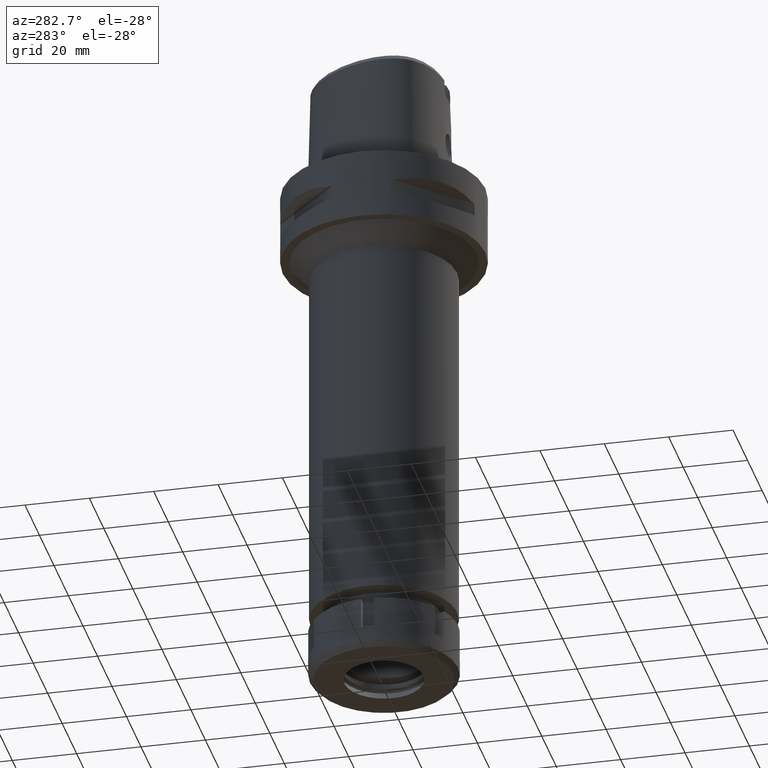
[diagram: clean part render]
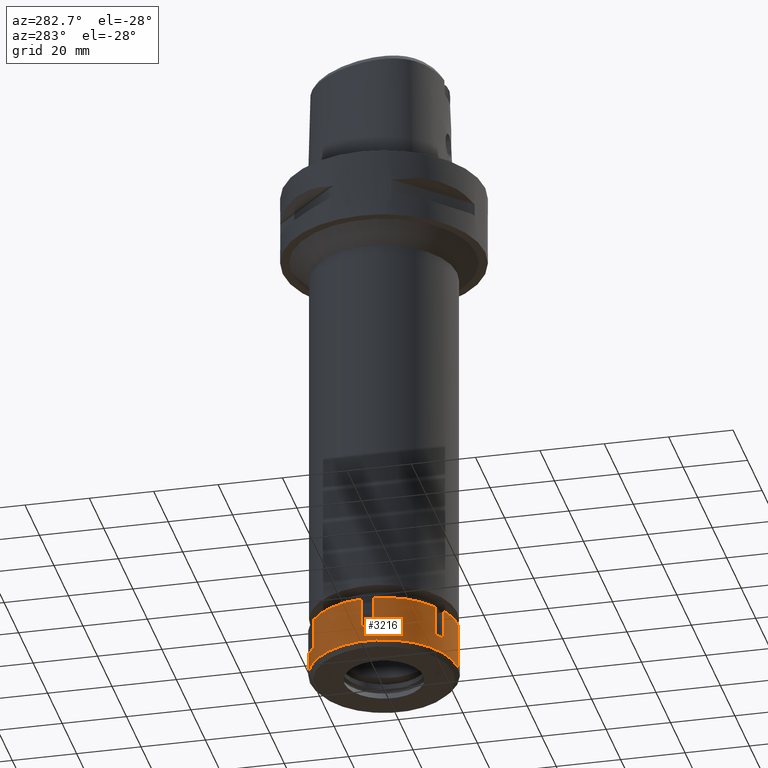
[diagram: same view with one face highlighted and labeled with its STEP entity id]
A machine part, auxiliary view. The second image highlights one B-rep face of the part: STEP entity #3216.
In plain terms, the highlighted cylindrical surface (partial cylindrical patch) has radius 23 mm, axis along (0, 0, -1).
Its self-contained STEP definition (entity closure, byte-faithful):
#60 = AXIS2_PLACEMENT_3D ( 'NONE', #3627, #4891, #4427 ) ;
#90 = ORIENTED_EDGE ( 'NONE', *, *, #2970, .F. ) ;
#103 = CARTESIAN_POINT ( 'NONE',  ( -22.91287847478000117, 2.000000000000000000, -9.500000000000000000 ) ) ;
#151 = AXIS2_PLACEMENT_3D ( 'NONE', #2406, #3734, #3710 ) ;
#188 = VERTEX_POINT ( 'NONE', #5437 ) ;
#269 = EDGE_CURVE ( 'NONE', #365, #4695, #5081, .T. ) ;
#270 = DIRECTION ( 'NONE',  ( 0.0000000000000000000, 0.0000000000000000000, -1.000000000000000000 ) ) ;
#275 = LINE ( 'NONE', #678, #304 ) ;
#304 = VECTOR ( 'NONE', #4932, 1000.000000000000000 ) ;
#309 = CYLINDRICAL_SURFACE ( 'NONE', #1063, 23.00000000000000000 ) ;
#365 = VERTEX_POINT ( 'NONE', #5349 ) ;
#494 = CIRCLE ( 'NONE', #3654, 23.00000000000000355 ) ;
#495 = CARTESIAN_POINT ( 'NONE',  ( 0.0000000000000000000, 23.00000000000000000, -14.50000000000000000 ) ) ;
#507 = VERTEX_POINT ( 'NONE', #1764 ) ;
#557 = DIRECTION ( 'NONE',  ( -0.9962121075990957308, 0.08695652173912968297, 0.0000000000000000000 ) ) ;
#678 = CARTESIAN_POINT ( 'NONE',  ( 0.0000000000000000000, 23.00000000000000000, 0.0000000000000000000 ) ) ;
#695 = ORIENTED_EDGE ( 'NONE', *, *, #2197, .T. ) ;
#708 = ORIENTED_EDGE ( 'NONE', *, *, #2863, .T. ) ;
#769 = EDGE_CURVE ( 'NONE', #5166, #5439, #3744, .T. ) ;
#909 = LINE ( 'NONE', #2624, #4297 ) ;
#939 = DIRECTION ( 'NONE',  ( 0.0000000000000000000, 0.0000000000000000000, -1.000000000000000000 ) ) ;
#941 = DIRECTION ( 'NONE',  ( 0.0000000000000000000, 0.0000000000000000000, -1.000000000000000000 ) ) ;
#989 = DIRECTION ( 'NONE',  ( 0.0000000000000000000, 0.0000000000000000000, 1.000000000000000000 ) ) ;
#1054 = DIRECTION ( 'NONE',  ( -0.5734126106503841802, -0.8192667318688773292, 0.0000000000000000000 ) ) ;
#1063 = AXIS2_PLACEMENT_3D ( 'NONE', #1926, #5388, #3626 ) ;
#1083 = CARTESIAN_POINT ( 'NONE',  ( 0.0000000000000000000, 0.0000000000000000000, 0.0000000000000000000 ) ) ;
#1089 = EDGE_CURVE ( 'NONE', #3073, #188, #494, .T. ) ;
#1117 = CARTESIAN_POINT ( 'NONE',  ( -22.91287847478000117, -2.000000000000000000, -9.500000000000000000 ) ) ;
#1136 = AXIS2_PLACEMENT_3D ( 'NONE', #1445, #939, #3174 ) ;
#1151 = CARTESIAN_POINT ( 'NONE',  ( -13.18849004495999999, -18.84313483298000236, -9.500000000000000000 ) ) ;
#1152 = ORIENTED_EDGE ( 'NONE', *, *, #3105, .T. ) ;
#1247 = VERTEX_POINT ( 'NONE', #4310 ) ;
#1297 = VERTEX_POINT ( 'NONE', #103 ) ;
#1414 = CARTESIAN_POINT ( 'NONE',  ( -9.724388429823001445, -20.84313483297999881, 0.0000000000000000000 ) ) ;
#1445 = CARTESIAN_POINT ( 'NONE',  ( 0.0000000000000000000, 0.0000000000000000000, -9.500000000000000000 ) ) ;
#1475 = LINE ( 'NONE', #4512, #4378 ) ;
#1520 = ORIENTED_EDGE ( 'NONE', *, *, #4707, .T. ) ;
#1522 = VERTEX_POINT ( 'NONE', #495 ) ;
#1536 = LINE ( 'NONE', #4977, #4203 ) ;
#1608 = AXIS2_PLACEMENT_3D ( 'NONE', #3005, #5163, #2705 ) ;
#1646 = DIRECTION ( 'NONE',  ( 0.0000000000000000000, 0.0000000000000000000, -1.000000000000000000 ) ) ;
#1659 = LINE ( 'NONE', #3400, #2108 ) ;
#1723 = CARTESIAN_POINT ( 'NONE',  ( -9.724388429820001178, 20.84313483297999881, -9.500000000000000000 ) ) ;
#1763 = ORIENTED_EDGE ( 'NONE', *, *, #5134, .F. ) ;
#1764 = CARTESIAN_POINT ( 'NONE',  ( -22.91287847478000117, -2.000000000000000000, 0.0000000000000000000 ) ) ;
#1895 = ORIENTED_EDGE ( 'NONE', *, *, #5022, .F. ) ;
#1914 = ORIENTED_EDGE ( 'NONE', *, *, #3009, .T. ) ;
#1926 = CARTESIAN_POINT ( 'NONE',  ( 0.0000000000000000000, 0.0000000000000000000, 0.0000000000000000000 ) ) ;
#1964 = CIRCLE ( 'NONE', #151, 23.00000000000001066 ) ;
#2005 = DIRECTION ( 'NONE',  ( 0.0000000000000000000, 0.0000000000000000000, 1.000000000000000000 ) ) ;
#2030 = EDGE_CURVE ( 'NONE', #4805, #4695, #2859, .T. ) ;
#2108 = VECTOR ( 'NONE', #4622, 1000.000000000000000 ) ;
#2153 = ORIENTED_EDGE ( 'NONE', *, *, #2643, .F. ) ;
#2197 = EDGE_CURVE ( 'NONE', #4500, #1297, #2302, .T. ) ;
#2302 = CIRCLE ( 'NONE', #1136, 23.00000000000000355 ) ;
#2361 = CARTESIAN_POINT ( 'NONE',  ( 0.0000000000000000000, -23.00000000000000000, -14.50000000000000000 ) ) ;
#2406 = CARTESIAN_POINT ( 'NONE',  ( 0.0000000000000000000, 0.0000000000000000000, -9.500000000000000000 ) ) ;
#2457 = CARTESIAN_POINT ( 'NONE',  ( -22.91287847478000117, 2.000000000000000000, 0.0000000000000000000 ) ) ;
#2478 = VECTOR ( 'NONE', #270, 1000.000000000000000 ) ;
#2489 = CARTESIAN_POINT ( 'NONE',  ( 0.0000000000000000000, 0.0000000000000000000, 0.0000000000000000000 ) ) ;
#2543 = ORIENTED_EDGE ( 'NONE', *, *, #1089, .T. ) ;
#2624 = CARTESIAN_POINT ( 'NONE',  ( -22.91287847478000117, -2.000000000000000000, -9.500000000000000000 ) ) ;
#2643 = EDGE_CURVE ( 'NONE', #4534, #4097, #1536, .T. ) ;
#2650 = AXIS2_PLACEMENT_3D ( 'NONE', #4204, #4711, #4682 ) ;
#2696 = DIRECTION ( 'NONE',  ( 0.0000000000000000000, 0.0000000000000000000, -1.000000000000000000 ) ) ;
#2705 = DIRECTION ( 'NONE',  ( 0.0000000000000000000, -1.000000000000000000, 0.0000000000000000000 ) ) ;
#2712 = DIRECTION ( 'NONE',  ( 0.0000000000000000000, 0.0000000000000000000, -1.000000000000000000 ) ) ;
#2827 = DIRECTION ( 'NONE',  ( 0.0000000000000000000, 0.0000000000000000000, -1.000000000000000000 ) ) ;
#2855 = DIRECTION ( 'NONE',  ( -0.4227994969487119392, 0.9062232536080258027, 0.0000000000000000000 ) ) ;
#2859 = LINE ( 'NONE', #2891, #4458 ) ;
#2863 = EDGE_CURVE ( 'NONE', #1522, #4097, #5371, .T. ) ;
#2891 = CARTESIAN_POINT ( 'NONE',  ( -9.724388429820001178, 20.84313483297999881, 0.0000000000000000000 ) ) ;
#2968 = ORIENTED_EDGE ( 'NONE', *, *, #2030, .F. ) ;
#2970 = EDGE_CURVE ( 'NONE', #3073, #1297, #1475, .T. ) ;
#2974 = EDGE_LOOP ( 'NONE', ( #2968, #1914, #3339, #708, #2153, #1520, #1895, #1152, #5040, #3445, #4749, #695, #90, #2543, #1763, #2997 ) ) ;
#2997 = ORIENTED_EDGE ( 'NONE', *, *, #269, .T. ) ;
#3005 = CARTESIAN_POINT ( 'NONE',  ( 0.0000000000000000000, 0.0000000000000000000, 0.0000000000000000000 ) ) ;
#3009 = EDGE_CURVE ( 'NONE', #4805, #1247, #5194, .T. ) ;
#3073 = VERTEX_POINT ( 'NONE', #2457 ) ;
#3105 = EDGE_CURVE ( 'NONE', #4644, #5439, #1964, .T. ) ;
#3128 = EDGE_CURVE ( 'NONE', #5166, #507, #3680, .T. ) ;
#3174 = DIRECTION ( 'NONE',  ( -0.9962121075990957308, -0.08695652173912968297, 0.0000000000000000000 ) ) ;
#3216 = ADVANCED_FACE ( 'NONE', ( #4064 ), #309, .T. ) ;
#3339 = ORIENTED_EDGE ( 'NONE', *, *, #5420, .T. ) ;
#3400 = CARTESIAN_POINT ( 'NONE',  ( -13.18849004495999999, 18.84313483298000236, -9.500000000000000000 ) ) ;
#3445 = ORIENTED_EDGE ( 'NONE', *, *, #3128, .T. ) ;
#3540 = CARTESIAN_POINT ( 'NONE',  ( -9.724388429820001178, 20.84313483297999881, 0.0000000000000000000 ) ) ;
#3626 = DIRECTION ( 'NONE',  ( 0.0000000000000000000, -1.000000000000000000, 0.0000000000000000000 ) ) ;
#3627 = CARTESIAN_POINT ( 'NONE',  ( 0.0000000000000000000, 0.0000000000000000000, -14.50000000000000000 ) ) ;
#3654 = AXIS2_PLACEMENT_3D ( 'NONE', #3912, #2696, #557 ) ;
#3662 = EDGE_CURVE ( 'NONE', #4500, #507, #909, .T. ) ;
#3680 = CIRCLE ( 'NONE', #4025, 22.99999999999999289 ) ;
#3710 = DIRECTION ( 'NONE',  ( -0.4227994969487938182, -0.9062232536079875000, 0.0000000000000000000 ) ) ;
#3711 = VERTEX_POINT ( 'NONE', #1414 ) ;
#3734 = DIRECTION ( 'NONE',  ( 0.0000000000000000000, 0.0000000000000000000, -1.000000000000000000 ) ) ;
#3744 = LINE ( 'NONE', #5035, #2478 ) ;
#3912 = CARTESIAN_POINT ( 'NONE',  ( 0.0000000000000000000, 0.0000000000000000000, 0.0000000000000000000 ) ) ;
#4025 = AXIS2_PLACEMENT_3D ( 'NONE', #1083, #2827, #1054 ) ;
#4034 = CIRCLE ( 'NONE', #1608, 23.00000000000000000 ) ;
#4064 = FACE_OUTER_BOUND ( 'NONE', #2974, .T. ) ;
#4097 = VERTEX_POINT ( 'NONE', #2361 ) ;
#4203 = VECTOR ( 'NONE', #941, 1000.000000000000000 ) ;
#4204 = CARTESIAN_POINT ( 'NONE',  ( 0.0000000000000000000, 0.0000000000000000000, -9.500000000000000000 ) ) ;
#4297 = VECTOR ( 'NONE', #989, 1000.000000000000000 ) ;
#4310 = CARTESIAN_POINT ( 'NONE',  ( 0.0000000000000000000, 23.00000000000000000, 0.0000000000000000000 ) ) ;
#4378 = VECTOR ( 'NONE', #2712, 1000.000000000000000 ) ;
#4427 = DIRECTION ( 'NONE',  ( 0.0000000000000000000, 1.000000000000000000, 0.0000000000000000000 ) ) ;
#4458 = VECTOR ( 'NONE', #1646, 1000.000000000000000 ) ;
#4491 = CARTESIAN_POINT ( 'NONE',  ( 0.0000000000000000000, -23.00000000000000000, 0.0000000000000000000 ) ) ;
#4500 = VERTEX_POINT ( 'NONE', #1117 ) ;
#4512 = CARTESIAN_POINT ( 'NONE',  ( -22.91287847478000117, 2.000000000000000000, 0.0000000000000000000 ) ) ;
#4534 = VERTEX_POINT ( 'NONE', #4491 ) ;
#4592 = LINE ( 'NONE', #5017, #4907 ) ;
#4622 = DIRECTION ( 'NONE',  ( 0.0000000000000000000, 0.0000000000000000000, 1.000000000000000000 ) ) ;
#4626 = DIRECTION ( 'NONE',  ( 0.0000000000000000000, 0.0000000000000000000, -1.000000000000000000 ) ) ;
#4644 = VERTEX_POINT ( 'NONE', #5450 ) ;
#4655 = AXIS2_PLACEMENT_3D ( 'NONE', #2489, #4626, #2855 ) ;
#4682 = DIRECTION ( 'NONE',  ( -0.5734126106504978670, 0.8192667318687978373, 0.0000000000000000000 ) ) ;
#4695 = VERTEX_POINT ( 'NONE', #1723 ) ;
#4707 = EDGE_CURVE ( 'NONE', #4534, #3711, #4034, .T. ) ;
#4711 = DIRECTION ( 'NONE',  ( 0.0000000000000000000, 0.0000000000000000000, -1.000000000000000000 ) ) ;
#4749 = ORIENTED_EDGE ( 'NONE', *, *, #3662, .F. ) ;
#4805 = VERTEX_POINT ( 'NONE', #3540 ) ;
#4891 = DIRECTION ( 'NONE',  ( 0.0000000000000000000, 0.0000000000000000000, 1.000000000000000000 ) ) ;
#4907 = VECTOR ( 'NONE', #2005, 1000.000000000000000 ) ;
#4932 = DIRECTION ( 'NONE',  ( 0.0000000000000000000, 0.0000000000000000000, -1.000000000000000000 ) ) ;
#4977 = CARTESIAN_POINT ( 'NONE',  ( 0.0000000000000000000, -23.00000000000000000, 0.0000000000000000000 ) ) ;
#5017 = CARTESIAN_POINT ( 'NONE',  ( -9.724388429822001356, -20.84313483297999881, -9.500000000000000000 ) ) ;
#5022 = EDGE_CURVE ( 'NONE', #4644, #3711, #4592, .T. ) ;
#5035 = CARTESIAN_POINT ( 'NONE',  ( -13.18849004495999999, -18.84313483298000236, 0.0000000000000000000 ) ) ;
#5040 = ORIENTED_EDGE ( 'NONE', *, *, #769, .F. ) ;
#5081 = CIRCLE ( 'NONE', #2650, 23.00000000000000355 ) ;
#5134 = EDGE_CURVE ( 'NONE', #365, #188, #1659, .T. ) ;
#5163 = DIRECTION ( 'NONE',  ( 0.0000000000000000000, 0.0000000000000000000, -1.000000000000000000 ) ) ;
#5166 = VERTEX_POINT ( 'NONE', #5552 ) ;
#5194 = CIRCLE ( 'NONE', #4655, 23.00000000000000355 ) ;
#5349 = CARTESIAN_POINT ( 'NONE',  ( -13.18849004495999999, 18.84313483298000236, -9.500000000000000000 ) ) ;
#5371 = CIRCLE ( 'NONE', #60, 23.00000000000000000 ) ;
#5388 = DIRECTION ( 'NONE',  ( 0.0000000000000000000, 0.0000000000000000000, -1.000000000000000000 ) ) ;
#5420 = EDGE_CURVE ( 'NONE', #1247, #1522, #275, .T. ) ;
#5437 = CARTESIAN_POINT ( 'NONE',  ( -13.18849004495999999, 18.84313483298000236, 0.0000000000000000000 ) ) ;
#5439 = VERTEX_POINT ( 'NONE', #1151 ) ;
#5450 = CARTESIAN_POINT ( 'NONE',  ( -9.724388429823001445, -20.84313483297999881, -9.500000000000000000 ) ) ;
#5552 = CARTESIAN_POINT ( 'NONE',  ( -13.18849004495999999, -18.84313483298000236, 0.0000000000000000000 ) ) ;